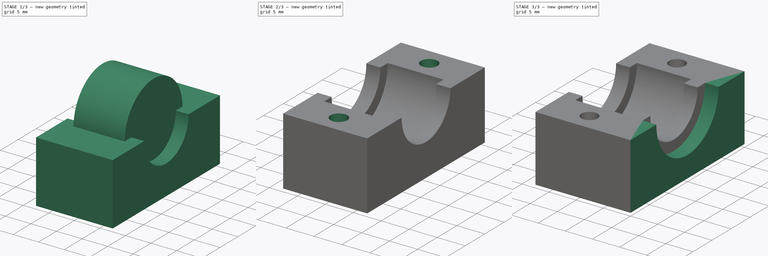
[diagram: build sequence overview — one tinted view per stage of 3, left to right]
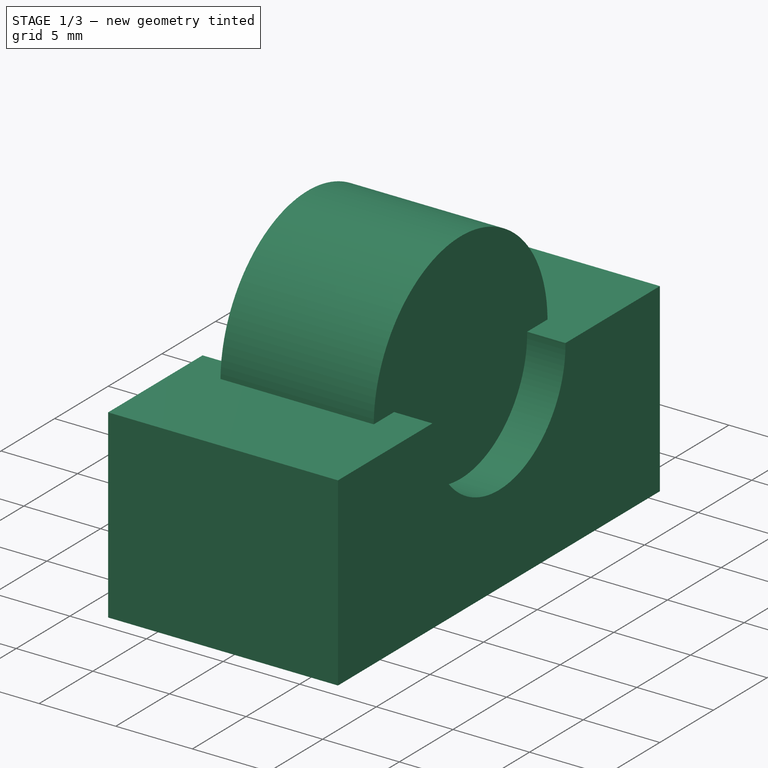
[diagram: stage 1 of 3 — iso view after this stage's code; geometry added in this stage tinted green]
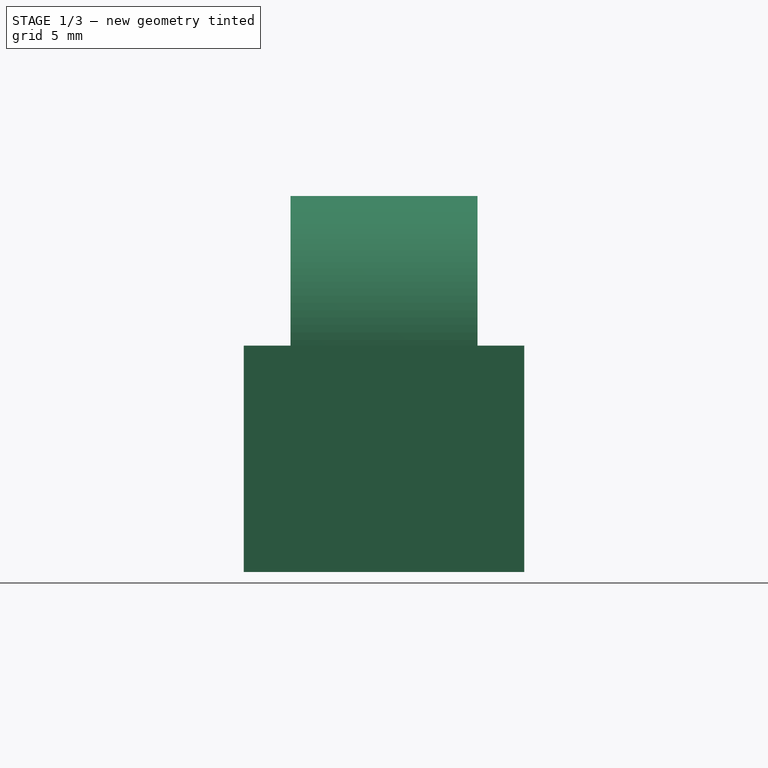
[diagram: stage 1 of 3 — front view after this stage's code; geometry added in this stage tinted green]
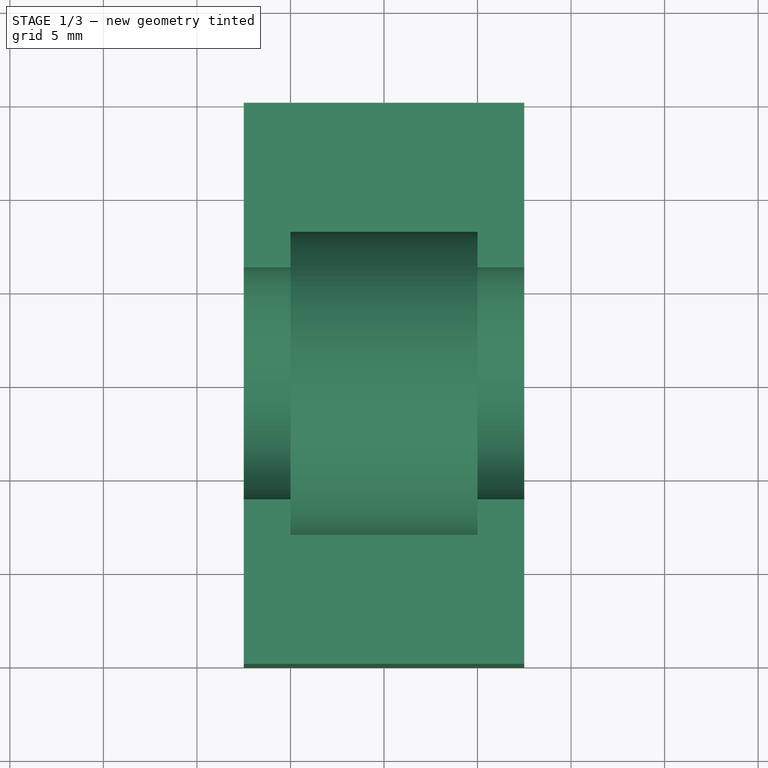
[diagram: stage 1 of 3 — top view after this stage's code; geometry added in this stage tinted green]
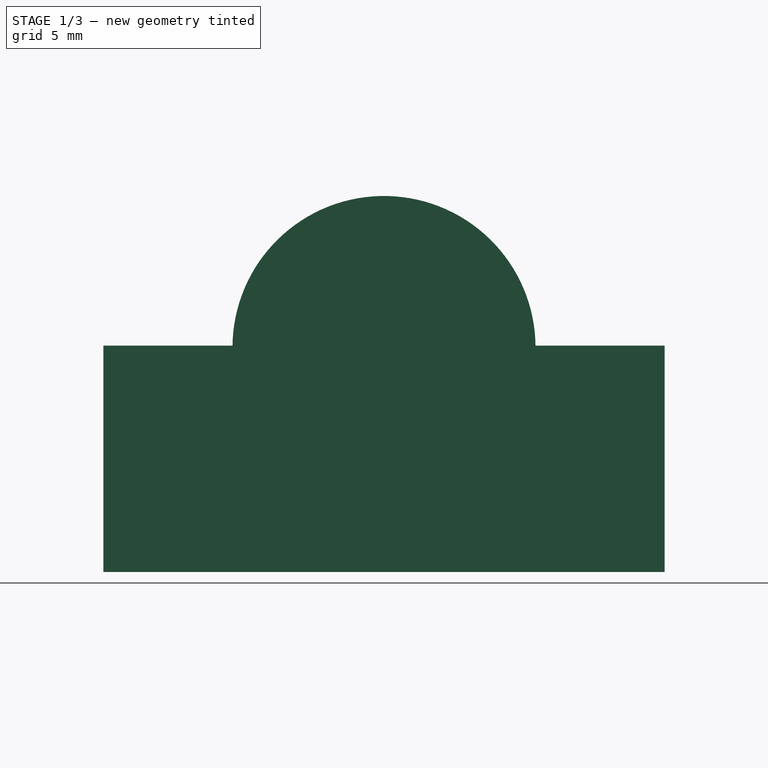
[diagram: stage 1 of 3 — right view after this stage's code; geometry added in this stage tinted green]
FCSTD DOCUMENT  (FreeCAD 0.16R6700 (Git))
Label: Bearing Support Top
License: FreeArt
LicenseURL: http://artlibre.org/licence/lal
objects: Drawing::FeatureViewPython×12, Sketcher::SketchObject×7, PartDesign::Pocket×4, PartDesign::Pad×3, Drawing::FeatureViewPart×3, Part::Cut×1, Drawing::FeaturePage×1
note: 22 computed .brp shape members not serialized (recipe doc carries the construction recipe); baked Part::Feature solids carry a one-line shape summary decoded from their .brp

FEATURE [Sketcher::SketchObject] Sketch
  sketch-geometry (4):
    g0: LineSegment StartX=-7.5 StartY=15 StartZ=0 EndX=7.5 EndY=15 EndZ=0
    g1: LineSegment StartX=7.5 StartY=15 StartZ=0 EndX=7.5 EndY=-15 EndZ=0
    g2: LineSegment StartX=7.5 StartY=-15 StartZ=0 EndX=-7.5 EndY=-15 EndZ=0
    g3: LineSegment StartX=-7.5 StartY=-15 StartZ=0 EndX=-7.5 EndY=15 EndZ=0
  constraints (12):
    c: Coincident(g0,g1)
    c: Coincident(g1,g2)
    c: Coincident(g2,g3)
    c: Coincident(g3,g0)
    c: Horizontal(g2)
    c: Vertical(g1)
    c: Vertical(g3)
    c: Parallel(g0,g2)
    c: Symmetric(g0,g2,g-1)
    c: Symmetric(g0,g0,g-2)
    c: DistanceY(g3,g3) = 30
    c: DistanceX(g0,g0) = 15
FEATURE [PartDesign::Pad] Pad
  Length = 12.1
  Length2 = 100
  Sketch = -> Sketch
  Type = 0
FEATURE [Sketcher::SketchObject] Sketch001
  Placement = pos=(7.5,0,0) rot=(0.57735,0.57735,0.57735;2.0944rad)
  Support = -> Pad [Face2]
  sketch-geometry (1):
    g0: Circle CenterX=0 CenterY=12 CenterZ=0 NormalX=0 NormalY=0 NormalZ=1 Radius=6.2
  constraints (3):
    c: PointOnObject(g0,g-2)
    c: DistanceY(g-1,g0) = 12
    c: Radius(g0) = 6.2
FEATURE [PartDesign::Pocket] Pocket
  Length = 5
  Sketch = -> Sketch001
  Type = 1
FEATURE [Sketcher::SketchObject] Sketch002
  Placement = pos=(0,0,0) rot=(0.57735,0.57735,0.57735;2.0944rad)
  sketch-geometry (1):
    g0: Circle CenterX=0 CenterY=12 CenterZ=0 NormalX=0 NormalY=0 NormalZ=1 Radius=8.1
  constraints (3):
    c: PointOnObject(g0,g-2)
    c: DistanceY(g-1,g0) = 12
    c: Radius(g0) = 8.1
FEATURE [PartDesign::Pad] Pad001
  Length = 10
  Length2 = 100
  Midplane = true
  Placement = pos=(0,0,0) rot=(0.57735,0.57735,0.57735;2.0944rad)
  Sketch = -> Sketch002
  Type = 0
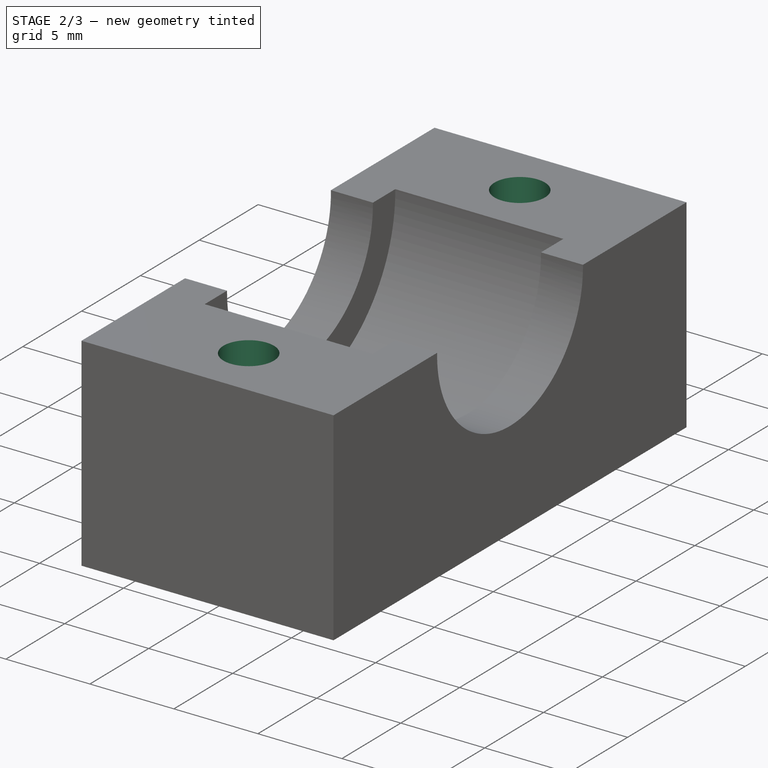
[diagram: stage 2 of 3 — iso view after this stage's code; geometry added in this stage tinted green]
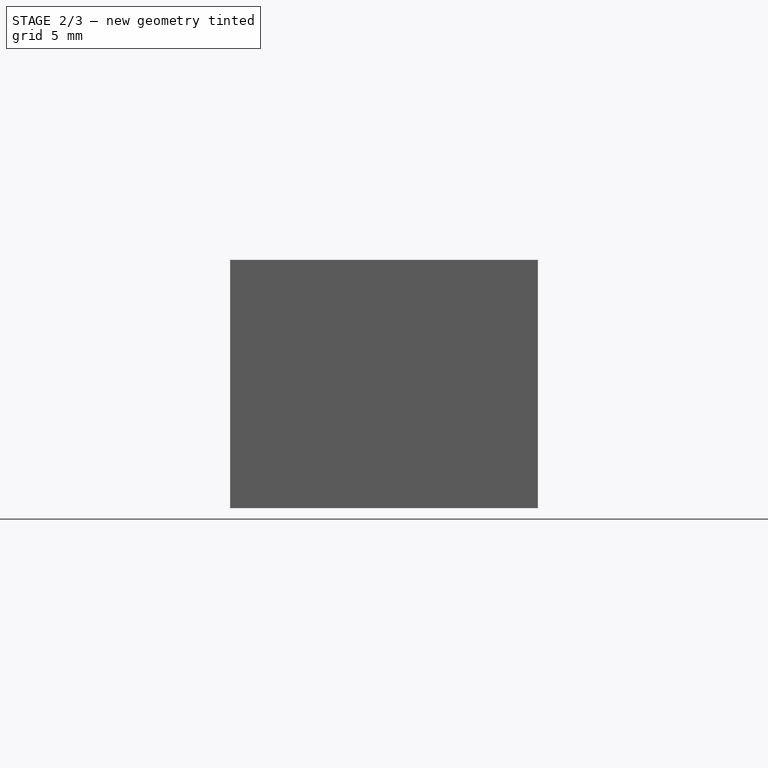
[diagram: stage 2 of 3 — front view after this stage's code; geometry added in this stage tinted green]
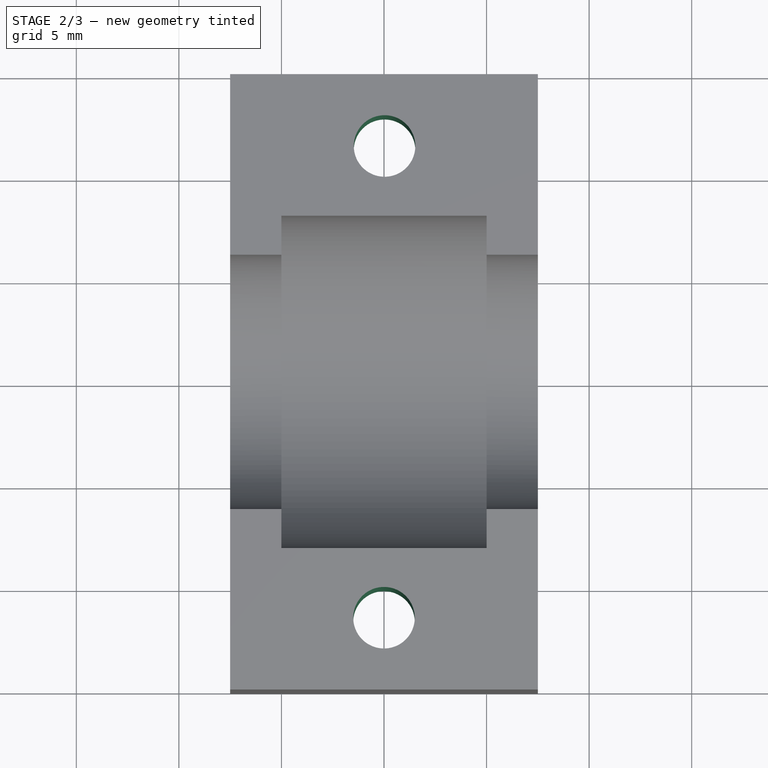
[diagram: stage 2 of 3 — top view after this stage's code; geometry added in this stage tinted green]
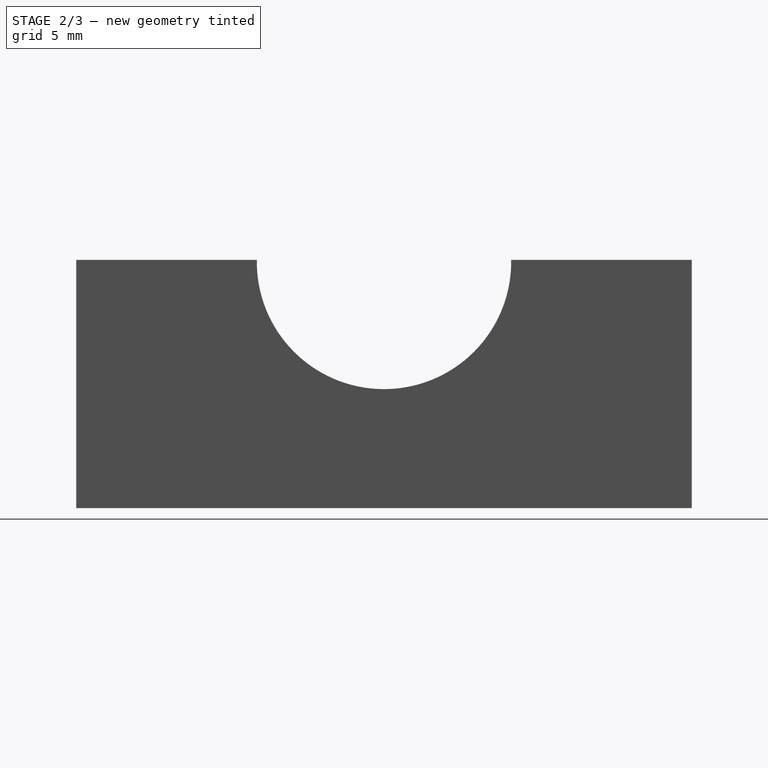
[diagram: stage 2 of 3 — right view after this stage's code; geometry added in this stage tinted green]
FEATURE [Part::Cut] Cut
  Base = -> Pocket
  Tool = -> Pad001
FEATURE [Sketcher::SketchObject] Sketch003
  Placement = pos=(0,0,0) rot=(1,0,0;3.14159rad)
  Support = -> Cut [Face4]
  sketch-geometry (2):
    g0: Circle CenterX=0.026833 CenterY=-11.5 CenterZ=0 NormalX=0 NormalY=0 NormalZ=1 Radius=1.5
    g1: Circle CenterX=0 CenterY=11.5 CenterZ=0 NormalX=0 NormalY=0 NormalZ=1 Radius=1.5
  constraints (5):
    c: PointOnObject(g1,g-2)
    c: DistanceY(g-1,g0) = -11.5
    c: DistanceY(g-1,g1) = 11.5
    c: Radius(g0) = 1.5
    c: Radius(g1) = 1.5
FEATURE [PartDesign::Pocket] Pocket001
  Length = 5
  Sketch = -> Sketch003
  Type = 1
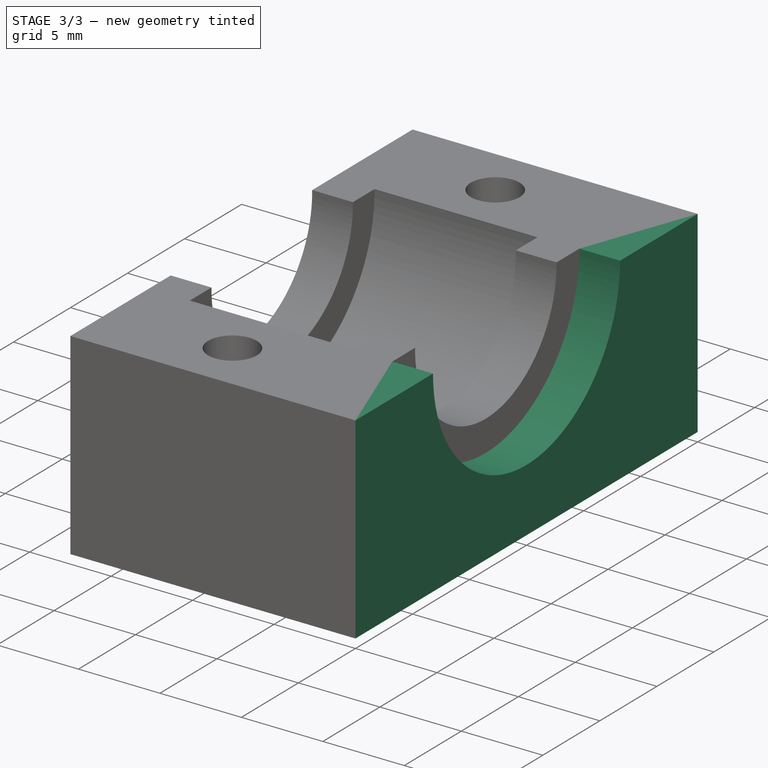
[diagram: stage 3 of 3 — iso view after this stage's code; geometry added in this stage tinted green]
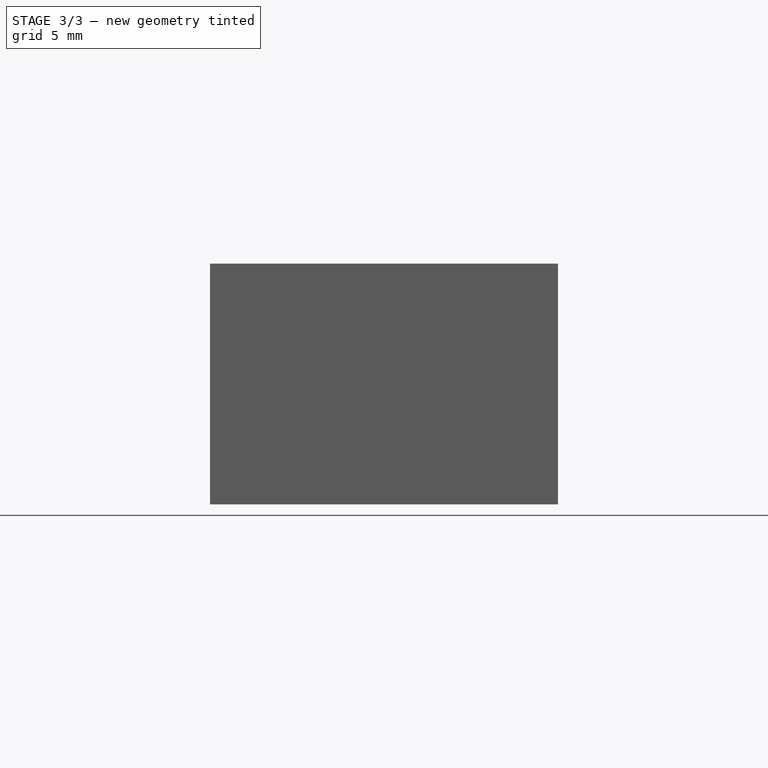
[diagram: stage 3 of 3 — front view after this stage's code; geometry added in this stage tinted green]
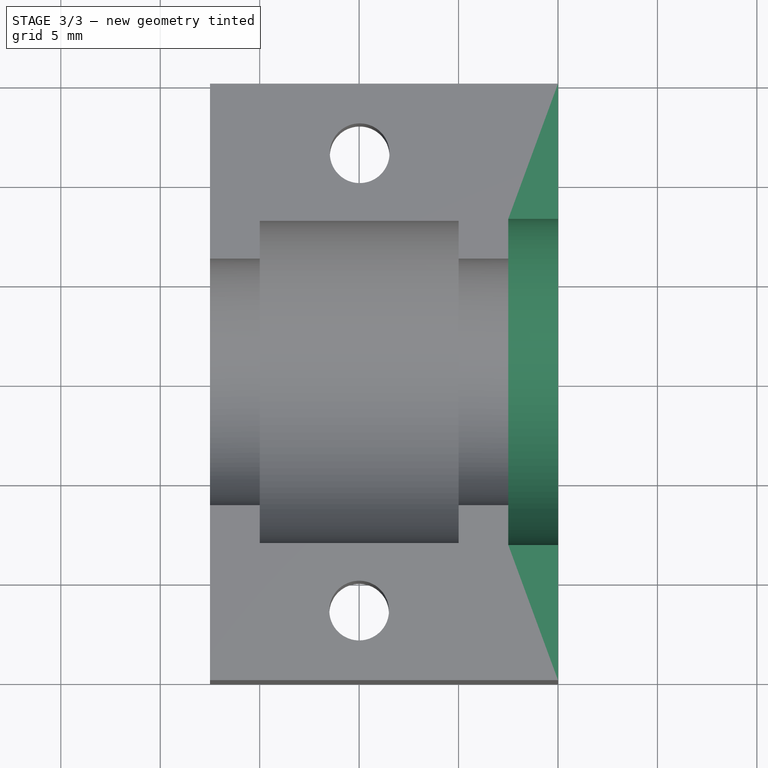
[diagram: stage 3 of 3 — top view after this stage's code; geometry added in this stage tinted green]
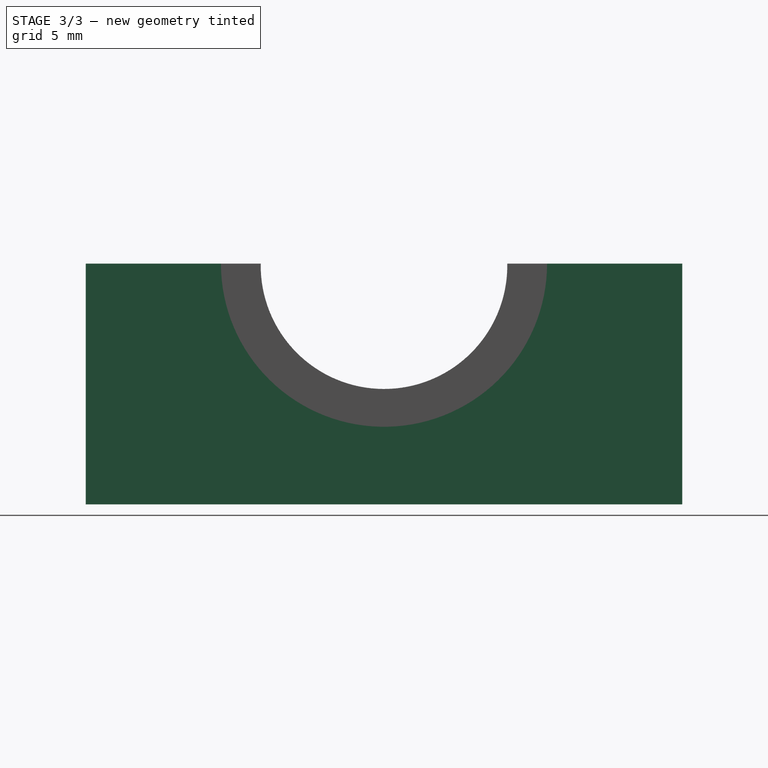
[diagram: stage 3 of 3 — right view after this stage's code; geometry added in this stage tinted green]
FEATURE [Sketcher::SketchObject] Sketch004
  Placement = pos=(0,0,0) rot=(1,0,0;3.14159rad)
  Support = -> Pocket001 [Face4]
  sketch-geometry (2):
    g0: Circle CenterX=0 CenterY=11.5 CenterZ=0 NormalX=0 NormalY=0 NormalZ=1 Radius=2.8
    g1: Circle CenterX=0 CenterY=-11.5 CenterZ=0 NormalX=0 NormalY=0 NormalZ=1 Radius=2.8
  constraints (6):
    c: PointOnObject(g0,g-2)
    c: PointOnObject(g1,g-2)
    c: Radius(g0) = 2.8
    c: Radius(g1) = 2.8
    c: DistanceY(g-1,g1) = -11.5
    c: DistanceY(g-1,g0) = 11.5
FEATURE [PartDesign::Pocket] Pocket002
  Length = 3
  Sketch = -> Sketch004
  Type = 0
FEATURE [Sketcher::SketchObject] Sketch005
  Placement = pos=(7.5,0,0) rot=(0.57735,0.57735,0.57735;2.0944rad)
  Support = -> Pocket002 [Face3]
  sketch-geometry (4):
    g0: LineSegment StartX=-15 StartY=12.1 StartZ=0 EndX=15 EndY=12.1 EndZ=0
    g1: LineSegment StartX=15 StartY=12.1 StartZ=0 EndX=15 EndY=0 EndZ=0
    g2: LineSegment StartX=15 StartY=0 StartZ=0 EndX=-15 EndY=0 EndZ=0
    g3: LineSegment StartX=-15 StartY=0 StartZ=0 EndX=-15 EndY=12.1 EndZ=0
  constraints (14):
    c: Coincident(g0,g1)
    c: Coincident(g1,g2)
    c: Coincident(g2,g3)
    c: Coincident(g3,g0)
    c: Horizontal(g0)
    c: Horizontal(g2)
    c: Vertical(g1)
    c: Vertical(g3)
    c: Equal(g2,g0)
    c: Equal(g3,g1)
    c: PointOnObject(g2,g-1)
    c: DistanceX(g2,g2) = 30
    c: Symmetric(g2,g1,g-2)
    c: DistanceY(g3,g3) = 12.1
FEATURE [PartDesign::Pad] Pad002
  Length = 2.5
  Length2 = 100
  Sketch = -> Sketch005
  Type = 0
FEATURE [Sketcher::SketchObject] Sketch006
  Placement = pos=(10,0,0) rot=(0.57735,0.57735,0.57735;2.0944rad)
  Support = -> Pad002 [Face1]
  sketch-geometry (1):
    g0: Circle CenterX=0 CenterY=12.1 CenterZ=0 NormalX=0 NormalY=0 NormalZ=1 Radius=8.2
  constraints (3):
    c: PointOnObject(g0,g-2)
    c: DistanceY(g-1,g0) = 12.1
    c: Radius(g0) = 8.2
FEATURE [PartDesign::Pocket] Pocket003
  Length = 2.5
  Sketch = -> Sketch006
  Type = 0
FEATURE [Drawing::FeatureViewPart] Ortho  label="Ortho_0_0"
  Direction = (0,0,1)
  HiddenWidth = 0.15
  LineWidth = 0.35
  Rotation = 180
  Scale = 3
  ShowHiddenLines = false
  ShowSmoothLines = false
  Source = -> Pocket003
  Tolerance = 0.05
  ViewResult = <blob: 3613 chars omitted>
  Visible = true
  X = 73.925
  Y = 81.5
FEATURE [Drawing::FeatureViewPart] Ortho003  label="Ortho_1_0"
  Direction = (-1,0,0)
  HiddenWidth = 0.15
  LineWidth = 0.35
  Rotation = 0
  Scale = 3
  ShowHiddenLines = false
  ShowSmoothLines = false
  Source = -> Pocket003
  Tolerance = 0.05
  ViewResult = <g id="Ortho_1_0"\n   transform="rotate(-6.36111e-015,166.65,81.5) translate(166.65,81.5) scale(3,3)"\n  >\n<g   stroke="rgb(0, 0, 0)"\n   stroke-width="0.116667"\n   stroke-linecap="butt"\n   stroke-linejoin="miter"\n   fill="none"\n   transform="scale(1,-1)"\n  >\n<path id= "1" d=" M -12.1 -6.19919 L -12.1 -15 " />\n<path id= "2" d=" M 0 -15 L -12.1 -15 " />\n<path id= "3" d=" M 0 15 L 0 -15 " />\n<path id= "4" d=" M 0 15 L -12.1 15 " />\n<path id= "5" d=" M -12.1 15 L -12.1 6.19919 " />\n<path d="M-12 -6.2 A6.2 6.2 0 0 0 -12.1 -6.19919" /><path d="M-12.1 6.19919 A6.2 6.2 0 1 0 -12 -6.2" /></g>\n</g>
  Visible = true
  X = 166.65
  Y = 81.5
FEATURE [Drawing::FeatureViewPart] Ortho004  label="Ortho_2_0"
  Direction = (0,0,-1)
  HiddenWidth = 0.15
  LineWidth = 0.35
  Rotation = 180
  Scale = 3
  ShowHiddenLines = false
  ShowSmoothLines = false
  Source = -> Pocket003
  Tolerance = 0.05
  ViewResult = <g id="Ortho_2_0"\n   transform="rotate(180,223.075,81.5) translate(223.075,81.5) scale(3,3)"\n  >\n<g   stroke="rgb(0, 0, 0)"\n   stroke-width="0.116667"\n   stroke-linecap="butt"\n   stroke-linejoin="miter"\n   fill="none"\n   transform="scale(1,-1)"\n  >\n<path id= "1" d=" M -10 15 L -10 -15 " />\n<path d="M-10,-8.2 L-10,-7.99441  L-10,-7.38794  L-10,-6.41102  L-10,-5.11262  L-10,-3.55785  L-10,-1.82467  L-10,1.30598e-014  L-10,1.82467  L-10,3.55785  L-10,5.11262  L-10,6.41102  L-10,7.38794  L-10,7.99441  L-10,8.2 " /><path id= "3" d=" M 7.5 15 L -10 15 " />\n<path id= "4" d=" M 7.5 -15 L -10 -15 " />\n<path id= "5" d=" M 7.5 -15 L 7.5 15 " />\n<circle cx ="0" cy ="-11.5" r ="2.8" /><circle cx ="0" cy ="11.5" r ="2.8" /><circle cx ="-0.026833" cy ="11.5" r ="1.5" /><circle cx ="0" cy ="11.5" r ="2.8" /><circle cx ="0" cy ="-11.5" r ="1.5" /></g>\n</g>
  Visible = true
  X = 223.075
  Y = 81.5
FEATURE [Drawing::FeatureViewPython] dim002  label="12.1"  # drawing view (typed FeaturePython)
  Rotation = 0
  ViewResult = <g> \n  <line x1="130.350000" y1="128.500000" x2="130.350000" y2="143.796536" style="stroke:rgb(0,0,255);stroke-width:0.50" />\n<line x1="166.650000" y1="128.500000" x2="166.650000" y2="143.796536" style="stroke:rgb(0,0,255);stroke-width:0.50" />\n<line x1="130.350000" y1="142.796536" x2="166.650000" y2="142.796536" style="stroke:rgb(0,0,255);stroke-width:0.50" /> \n  <polygon points="166.650000,142.796536 163.650000,141.796536 162.650000,142.796536 163.650000,143.796536" style="fill:rgb(0,0,255);stroke:rgb(0,0,255);stroke-width:0" /><polygon points="130.350000,142.796536 133.350000,143.796536 134.350000,142.796536 133.350000,141.796536" style="fill:rgb(0,0,255);stroke:rgb(0,0,255);stroke-width:0" /> \n  <text x="148.500000" y="140.796536" font-family="inherit" font-size="3.6" fill="rgb(0,0,255)" text-anchor="middle" transform="rotate(0.000000 148.500000,140.796536)" >12.1</text> </g>
  Visible = true
  X = 0
  Y = 0
  arrowL1 = 3
  arrowL2 = 1
  arrowW = 2
  arrow_scheme = 0
  autoPlaceOffset = 2
  autoPlaceText = true
  click1_x = 166.91
  click1_y = 142.797
  click2_x = 166.91
  click2_y = 142.797
  comma_decimal_place = false
  dimension_line_overshoot = 1
  gap_datum_points = 2
  halfDimension_linear = false
  lineColor = rgb(0,0,255)
  strokeWidth = 0.5
  textFormat_linear = %(value)3.3f
  textRenderer_color = rgb(0,0,255)
  textRenderer_family = inherit
  textRenderer_size = 3.6
  unit_custom_scale = 1
  unit_scheme = 0
FEATURE [Drawing::FeatureViewPython] dim009  label="dim09"  # drawing view (typed FeaturePython)
  Rotation = 0
  ViewResult = <g> \n  <line x1="98.425000" y1="36.500000" x2="105.365806" y2="36.500000" style="stroke:rgb(0,0,255);stroke-width:0.50" />\n<line x1="98.425000" y1="126.500000" x2="105.365806" y2="126.500000" style="stroke:rgb(0,0,255);stroke-width:0.50" />\n<line x1="104.365806" y1="36.500000" x2="104.365806" y2="126.500000" style="stroke:rgb(0,0,255);stroke-width:0.50" /> \n  <polygon points="104.365806,126.500000 105.365806,113.500000 104.365806,112.500000 103.365806,113.500000" style="fill:rgb(0,0,255);stroke:rgb(0,0,255);stroke-width:0" /><polygon points="104.365806,36.500000 103.365806,49.500000 104.365806,50.500000 105.365806,49.500000" style="fill:rgb(0,0,255);stroke:rgb(0,0,255);stroke-width:0" /> \n  <text x="102.365806" y="81.500000" font-family="inherit" font-size="3.6" fill="rgb(0,0,255)" text-anchor="middle" transform="rotate(-90.000000 102.365806,81.500000)" >30</text> </g>
  Visible = true
  X = 0
  Y = 0
  arrowL1 = 13
  arrowL2 = 1
  arrowW = 2
  arrow_scheme = 0
  autoPlaceOffset = 2
  autoPlaceText = true
  click1_x = 104.366
  click1_y = 125.842
  click2_x = 104.366
  click2_y = 125.842
  comma_decimal_place = false
  dimension_line_overshoot = 1
  gap_datum_points = 2
  halfDimension_linear = false
  lineColor = rgb(0,0,255)
  strokeWidth = 0.5
  textFormat_linear = %(value)3.3f
  textRenderer_color = rgb(0,0,255)
  textRenderer_family = inherit
  textRenderer_size = 3.6
  unit_custom_scale = 1
  unit_scheme = 0
FEATURE [Drawing::FeatureViewPython] centerLines001  # drawing view (typed FeaturePython)
  Rotation = 0
  ViewResult = <g transform="scale(3.000000,3.000000)" stroke="rgb(0,0,255)"  stroke-width="0.106667" > <path d="M 74.385166,38.666667 L 74.385166,37.666667 M 74.385166,37.000000 L 74.385166,36.170099 "/>\n<path d="M 74.385166,38.666667 L 75.385166,38.666667 M 76.051833,38.666667 L 78.051833,38.666667 M 78.718500,38.666667 L 79.718500,38.666667 M 80.385166,38.666667 L 82.385166,38.666667 M 83.051833,38.666667 L 84.051833,38.666667 M 84.718500,38.666667 L 86.718500,38.666667 "/>\n<path d="M 74.385166,38.666667 L 74.385166,37.666667 M 74.385166,37.000000 L 74.385166,35.000000 M 74.385166,34.333333 L 74.385166,33.333333 M 74.385166,32.666667 L 74.385166,30.666667 M 74.385166,30.000000 L 74.385166,29.000000 M 74.385166,28.333333 L 74.385166,26.333333 M 74.385166,25.666667 L 74.385166,24.666667 M 74.385166,24.000000 L 74.385166,22.000000 M 74.385166,21.333333 L 74.385166,20.333333 M 74.385166,19.666667 L 74.385166,17.666667 M 74.385166,17.000000 L 74.385166,16.000000 M 74.385166,15.333333 L 74.385166,13.333333 M 74.385166,12.666667 L 74.385166,11.666667 M 74.385166,11.000000 L 74.385166,9.000000 "/>\n<path d="M 74.385166,38.666667 L 73.972876,38.666667 "/> </g> 
  Visible = true
  X = 0
  Y = 0
  centerLine_color = rgb(0,0,255)
  centerLine_len_dash = 6
  centerLine_len_dot = 3
  centerLine_len_gap = 2
  centerLine_width = 0.32
  click1_x = 260.726
  click1_y = 108.51
  click2_x = 221.919
  click2_y = 25.6205
FEATURE [Drawing::FeatureViewPython] centerLines002  # drawing view (typed FeaturePython)
  Rotation = 0
  ViewResult = <g transform="scale(3.000000,3.000000)" stroke="rgb(0,0,255)"  stroke-width="0.106667" > <path d="M 24.614834,38.666667 L 24.614834,38.556321 "/>\n<path d="M 24.614834,38.666667 L 25.614834,38.666667 M 26.281500,38.666667 L 28.281500,38.666667 M 28.948167,38.666667 L 29.948167,38.666667 M 30.614834,38.666667 L 32.614834,38.666667 M 33.281500,38.666667 L 34.281500,38.666667 M 34.948167,38.666667 L 36.948167,38.666667 "/>\n<path d="M 24.614834,38.666667 L 24.614834,37.666667 M 24.614834,37.000000 L 24.614834,35.000000 M 24.614834,34.333333 L 24.614834,33.333333 M 24.614834,32.666667 L 24.614834,30.666667 M 24.614834,30.000000 L 24.614834,29.000000 M 24.614834,28.333333 L 24.614834,26.333333 M 24.614834,25.666667 L 24.614834,24.666667 M 24.614834,24.000000 L 24.614834,22.000000 M 24.614834,21.333333 L 24.614834,20.333333 M 24.614834,19.666667 L 24.614834,17.666667 M 24.614834,17.000000 L 24.614834,16.000000 M 24.614834,15.333333 L 24.614834,13.333333 M 24.614834,12.666667 L 24.614834,11.666667 M 24.614834,11.000000 L 24.614834,9.419297 "/>\n<path d="M 24.614834,38.666667 L 24.615762,38.666667 "/> </g> 
  Visible = true
  X = 0
  Y = 0
  centerLine_color = rgb(0,0,255)
  centerLine_len_dash = 6
  centerLine_len_dot = 3
  centerLine_len_gap = 2
  centerLine_width = 0.32
  click1_x = 111.524
  click1_y = 115.669
  click2_x = 73.8473
  click2_y = 28.2579
FEATURE [Drawing::FeatureViewPython] centerLines003  # drawing view (typed FeaturePython)
  Rotation = 0
  ViewResult = <g transform="scale(3.000000,3.000000)" stroke="rgb(0,0,255)"  stroke-width="0.106667" > <path d="M 43.450216,27.167477 L 43.450216,28.167477 M 43.450216,28.834143 L 43.450216,30.834143 M 43.450216,31.500810 L 43.450216,32.500810 M 43.450216,33.167477 L 43.450216,35.165374 "/>\n<path d="M 43.450216,27.167477 L 42.450216,27.167477 M 41.783550,27.167477 L 39.812227,27.167477 "/>\n<path d="M 43.450216,27.167477 L 43.450216,26.167477 M 43.450216,25.500810 L 43.450216,23.500810 M 43.450216,22.834143 L 43.450216,21.834143 M 43.450216,21.167477 L 43.450216,20.471271 "/>\n<path d="M 43.450216,27.167477 L 43.705536,27.167477 "/> </g> 
  Visible = true
  X = 0
  Y = 0
  centerLine_color = rgb(0,0,255)
  centerLine_len_dash = 6
  centerLine_len_dot = 3
  centerLine_len_gap = 2
  centerLine_width = 0.32
  click1_x = 119.437
  click1_y = 105.496
  click2_x = 131.117
  click2_y = 61.4138
FEATURE [Drawing::FeatureViewPython] rad001  # drawing view (typed FeaturePython)
  Rotation = 0
  ViewResult = <g>  <circle cx ="130.350649" cy ="81.502430" r="0.250000" stroke="none" fill="rgb(0,0,255)" /> \n<line x1="146.187483" y1="102.105175" x2="130.350649" y2="81.502430" style="stroke:rgb(0,0,255);stroke-width:0.50" />\n<polygon points="141.686128,96.249189 140.650661,93.261245 139.248390,93.077843 139.064988,94.480114" style="fill:rgb(0,0,255);stroke:rgb(0,0,255);stroke-width:0" />\n<line x1="146.187483" y1="102.105175" x2="157.490639" y2="102.105175" style="stroke:rgb(0,0,255);stroke-width:0.50" />\n<text x="151.839061" y="100.105175" font-family="inherit" font-size="3.6" fill="rgb(0,0,255)" text-anchor="middle" transform="rotate(0.000000 151.839061,100.105175)" >R6.2</text> </g>
  Visible = true
  X = 0
  Y = 0
  arrowL1 = 3
  arrowL2 = 1
  arrowW = 2
  arrow_scheme = 0
  autoPlaceOffset = 2
  autoPlaceText = true
  centerPointDia = 0.5
  click1_x = 146.187
  click1_y = 102.105
  click2_x = 157.491
  click2_y = 101.352
  click3_x = 157.491
  click3_y = 101.352
  comma_decimal_place = false
  lineColor = rgb(0,0,255)
  strokeWidth = 0.5
  textFormat_radial = R%(value)3.3f
  textRenderer_color = rgb(0,0,255)
  textRenderer_family = inherit
  textRenderer_size = 3.6
  unit_custom_scale = 1
  unit_scheme = 0
FEATURE [Drawing::FeatureViewPython] rad002  # drawing view (typed FeaturePython)
  Rotation = 0
  ViewResult = <g>  <circle cx ="223.155499" cy ="116.000000" r="0.250000" stroke="none" fill="rgb(0,0,255)" /> \n<line x1="213.629646" y1="109.640612" x2="223.155499" y2="116.000000" style="stroke:rgb(0,0,255);stroke-width:0.50" />\n<polygon points="219.412873,113.501451 221.352724,115.998845 222.739652,115.722383 222.463190,114.335456" style="fill:rgb(0,0,255);stroke:rgb(0,0,255);stroke-width:0" />\n<line x1="213.629646" y1="109.640612" x2="206.470981" y2="109.640612" style="stroke:rgb(0,0,255);stroke-width:0.50" />\n<text x="210.050314" y="107.640612" font-family="inherit" font-size="3.6" fill="rgb(0,0,255)" text-anchor="middle" transform="rotate(0.000000 210.050314,107.640612)" >R1.5</text> </g>
  Visible = true
  X = 0
  Y = 0
  arrowL1 = 3
  arrowL2 = 1
  arrowW = 2
  arrow_scheme = 0
  autoPlaceOffset = 2
  autoPlaceText = true
  centerPointDia = 0.5
  click1_x = 213.63
  click1_y = 109.641
  click2_x = 206.471
  click2_y = 110.771
  click3_x = 206.471
  click3_y = 110.771
  comma_decimal_place = false
  lineColor = rgb(0,0,255)
  strokeWidth = 0.5
  textFormat_radial = R%(value)3.3f
  textRenderer_color = rgb(0,0,255)
  textRenderer_family = inherit
  textRenderer_size = 3.6
  unit_custom_scale = 1
  unit_scheme = 0
FEATURE [Drawing::FeatureViewPython] rad003  # drawing view (typed FeaturePython)
  Rotation = 0
  ViewResult = <g>  <circle cx ="223.075000" cy ="116.000000" r="0.250000" stroke="none" fill="rgb(0,0,255)" /> \n<line x1="215.513506" y1="98.337456" x2="223.075000" y2="116.000000" style="stroke:rgb(0,0,255);stroke-width:0.50" />\n<polygon points="219.769095,108.277889 220.030476,111.429346 221.343335,111.955085 221.869074,110.642226" style="fill:rgb(0,0,255);stroke:rgb(0,0,255);stroke-width:0" />\n<line x1="215.513506" y1="98.337456" x2="205.340665" y2="98.337456" style="stroke:rgb(0,0,255);stroke-width:0.50" />\n<text x="210.427086" y="96.337456" font-family="inherit" font-size="3.6" fill="rgb(0,0,255)" text-anchor="middle" transform="rotate(0.000000 210.427086,96.337456)" >R2.8</text> </g>
  Visible = true
  X = 0
  Y = 0
  arrowL1 = 3
  arrowL2 = 1
  arrowW = 2
  arrow_scheme = 0
  autoPlaceOffset = 2
  autoPlaceText = true
  centerPointDia = 0.5
  click1_x = 215.514
  click1_y = 98.3375
  click2_x = 205.341
  click2_y = 97.2071
  click3_x = 205.341
  click3_y = 97.2071
  comma_decimal_place = false
  lineColor = rgb(0,0,255)
  strokeWidth = 0.5
  textFormat_radial = R%(value)3.3f
  textRenderer_color = rgb(0,0,255)
  textRenderer_family = inherit
  textRenderer_size = 3.6
  unit_custom_scale = 1
  unit_scheme = 0
FEATURE [Drawing::FeatureViewPython] dimStack001  # drawing view (typed FeaturePython)
  Rotation = 0
  ViewResult = <blob: 3473 chars omitted>
  Visible = true
  X = 0
  Y = 0
  arrowL1 = 3
  arrowL2 = 1
  arrowW = 2
  arrow_scheme = 0
  autoPlaceOffset = 2
  click1_x = 76.8615
  click1_y = 139.782
  comma_decimal_place = false
  dimension_line_overshoot = 1
  gap_datum_points = 2
  lineColor = rgb(0,0,255)
  stack_offset = 7
  stack_offset0 = 0
  strokeWidth = 0.5
  textFormat_linear = %(value)3.3f
  textRenderer_color = rgb(0,0,255)
  textRenderer_family = inherit
  textRenderer_size = 3.6
  unit_custom_scale = 1
  unit_scheme = 0
FEATURE [Drawing::FeatureViewPython] rad004  # drawing view (typed FeaturePython)
  Rotation = 0
  ViewResult = <g>  <circle cx ="223.075000" cy ="47.000000" r="0.250000" stroke="none" fill="rgb(0,0,255)" /> \n<line x1="215.513506" y1="37.677186" x2="223.075000" y2="47.000000" style="stroke:rgb(0,0,255);stroke-width:0.50" />\n<polygon points="220.240336,43.505050 221.353456,46.464942 222.760037,46.611672 222.906768,45.205091" style="fill:rgb(0,0,255);stroke:rgb(0,0,255);stroke-width:0" />\n<line x1="215.513506" y1="37.677186" x2="207.978068" y2="37.677186" style="stroke:rgb(0,0,255);stroke-width:0.50" />\n<text x="211.745787" y="35.677186" font-family="inherit" font-size="3.6" fill="rgb(0,0,255)" text-anchor="middle" transform="rotate(0.000000 211.745787,35.677186)" >R1.5</text> </g>
  Visible = true
  X = 0
  Y = 0
  arrowL1 = 3
  arrowL2 = 1
  arrowW = 2
  arrow_scheme = 0
  autoPlaceOffset = 2
  autoPlaceText = true
  centerPointDia = 0.5
  click1_x = 215.514
  click1_y = 37.6772
  click2_x = 207.978
  click2_y = 38.4307
  click3_x = 207.978
  click3_y = 38.4307
  comma_decimal_place = false
  lineColor = rgb(0,0,255)
  strokeWidth = 0.5
  textFormat_radial = R%(value)3.3f
  textRenderer_color = rgb(0,0,255)
  textRenderer_family = inherit
  textRenderer_size = 3.6
  unit_custom_scale = 1
  unit_scheme = 0
FEATURE [Drawing::FeatureViewPython] rad005  # drawing view (typed FeaturePython)
  Rotation = 0
  ViewResult = <g>  <circle cx ="223.075000" cy ="47.000000" r="0.250000" stroke="none" fill="rgb(0,0,255)" /> \n<line x1="232.468240" y1="47.850027" x2="223.075000" y2="47.000000" style="stroke:rgb(0,0,255);stroke-width:0.50" />\n<polygon points="231.440816,47.757051 228.543150,46.490746 227.457094,47.396551 228.362899,48.482606" style="fill:rgb(0,0,255);stroke:rgb(0,0,255);stroke-width:0" />\n<line x1="232.468240" y1="47.850027" x2="241.887536" y2="47.850027" style="stroke:rgb(0,0,255);stroke-width:0.50" />\n<text x="237.177888" y="45.850027" font-family="inherit" font-size="3.6" fill="rgb(0,0,255)" text-anchor="middle" transform="rotate(0.000000 237.177888,45.850027)" >R2.8</text> </g>
  Visible = true
  X = 0
  Y = 0
  arrowL1 = 3
  arrowL2 = 1
  arrowW = 2
  arrow_scheme = 0
  autoPlaceOffset = 2
  autoPlaceText = true
  centerPointDia = 0.5
  click1_x = 232.468
  click1_y = 47.85
  click2_x = 241.888
  click2_y = 44.4591
  click3_x = 241.888
  click3_y = 44.4591
  comma_decimal_place = false
  lineColor = rgb(0,0,255)
  strokeWidth = 0.5
  textFormat_radial = R%(value)3.3f
  textRenderer_color = rgb(0,0,255)
  textRenderer_family = inherit
  textRenderer_size = 3.6
  unit_custom_scale = 1
  unit_scheme = 0
FEATURE [Drawing::FeatureViewPython] dim003  # drawing view (typed FeaturePython)
  Rotation = 0
  ViewResult = <g> \n  <line x1="41.925000" y1="56.900000" x2="20.099224" y2="56.900000" style="stroke:rgb(0,0,255);stroke-width:0.50" />\n<line x1="41.925000" y1="106.100000" x2="20.099224" y2="106.100000" style="stroke:rgb(0,0,255);stroke-width:0.50" />\n<line x1="21.099224" y1="56.900000" x2="21.099224" y2="106.100000" style="stroke:rgb(0,0,255);stroke-width:0.50" /> \n  <polygon points="21.099224,106.100000 22.099224,103.100000 21.099224,102.100000 20.099224,103.100000" style="fill:rgb(0,0,255);stroke:rgb(0,0,255);stroke-width:0" /><polygon points="21.099224,56.900000 20.099224,59.900000 21.099224,60.900000 22.099224,59.900000" style="fill:rgb(0,0,255);stroke:rgb(0,0,255);stroke-width:0" /> \n  <text x="19.099224" y="81.500000" font-family="inherit" font-size="3.6" fill="rgb(0,0,255)" text-anchor="middle" transform="rotate(-90.000000 19.099224,81.500000)" >16.4</text> </g>
  Visible = true
  X = 0
  Y = 0
  arrowL1 = 3
  arrowL2 = 1
  arrowW = 2
  arrow_scheme = 0
  autoPlaceOffset = 2
  autoPlaceText = true
  click1_x = 21.0992
  click1_y = 104.743
  click2_x = 21.0992
  click2_y = 104.743
  comma_decimal_place = false
  dimension_line_overshoot = 1
  gap_datum_points = 2
  halfDimension_linear = false
  lineColor = rgb(0,0,255)
  strokeWidth = 0.5
  textFormat_linear = %(value)3.3f
  textRenderer_color = rgb(0,0,255)
  textRenderer_family = inherit
  textRenderer_size = 3.6
  unit_custom_scale = 1
  unit_scheme = 0
FEATURE [Drawing::FeaturePage] Page001
  EditableTexts = Eduardo R. Ludovico | 02/06/2016 | 1.1 | Bearing Support Top
  Group = -> [Ortho,Ortho003,Ortho004,dim002,dim009,centerLines001,centerLines002,centerLines003,rad001,rad002,rad003,dimStack001,rad004,rad005,dim003]
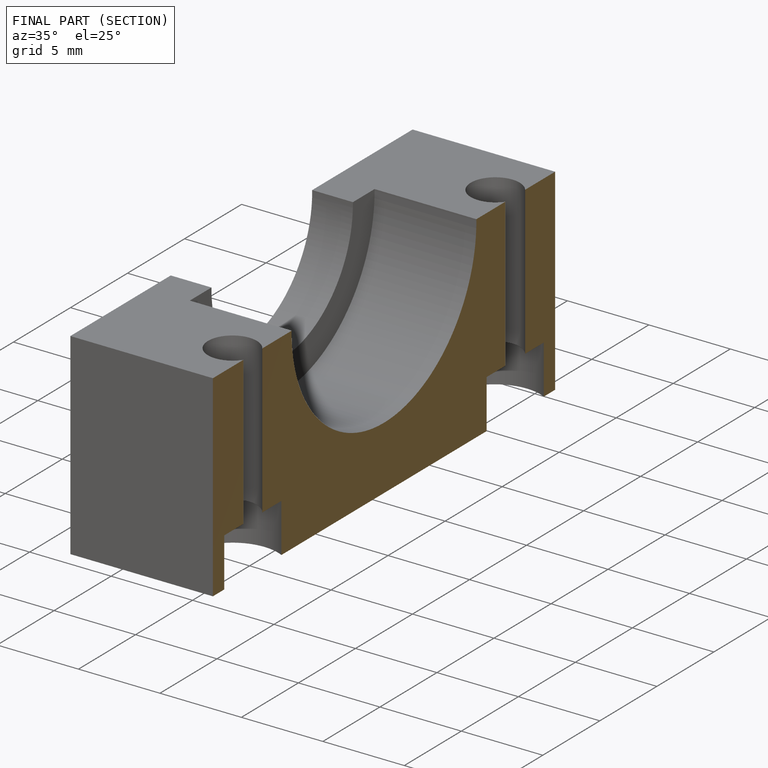
[diagram: finished part — half-section view (interior)]
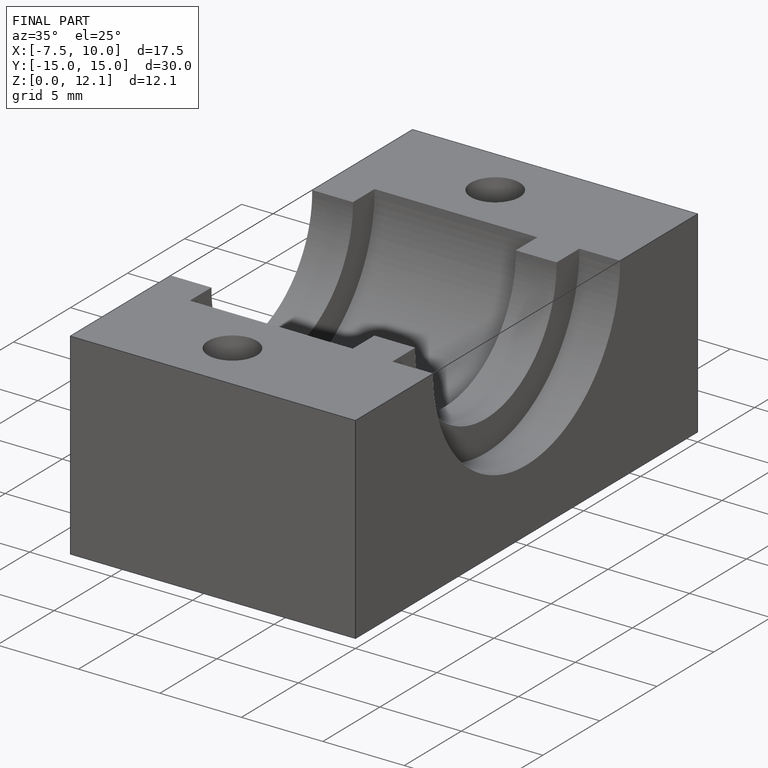
[diagram: finished part — iso view with bounding-box wireframe]
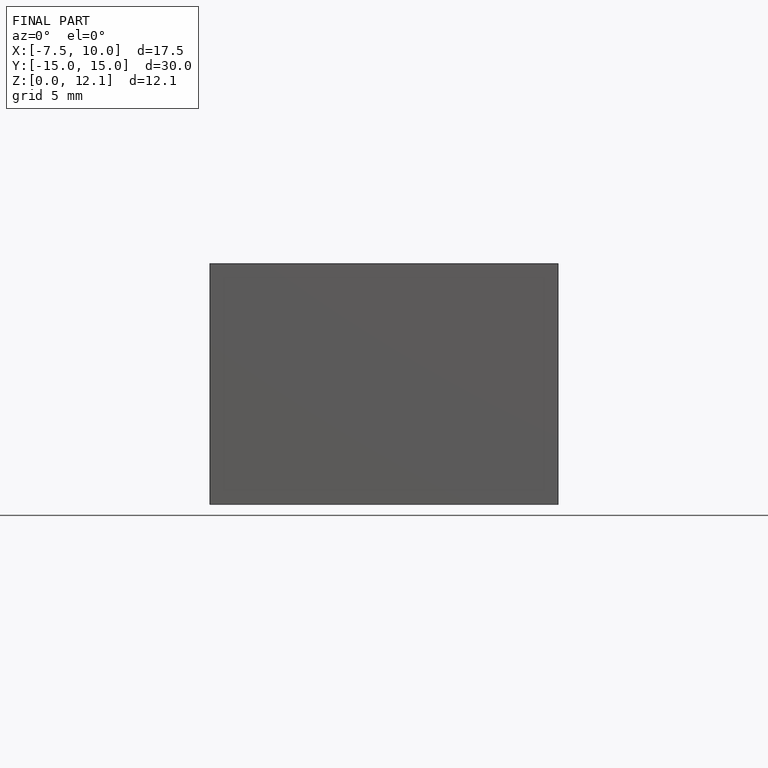
[diagram: finished part — front view with bounding-box wireframe]
